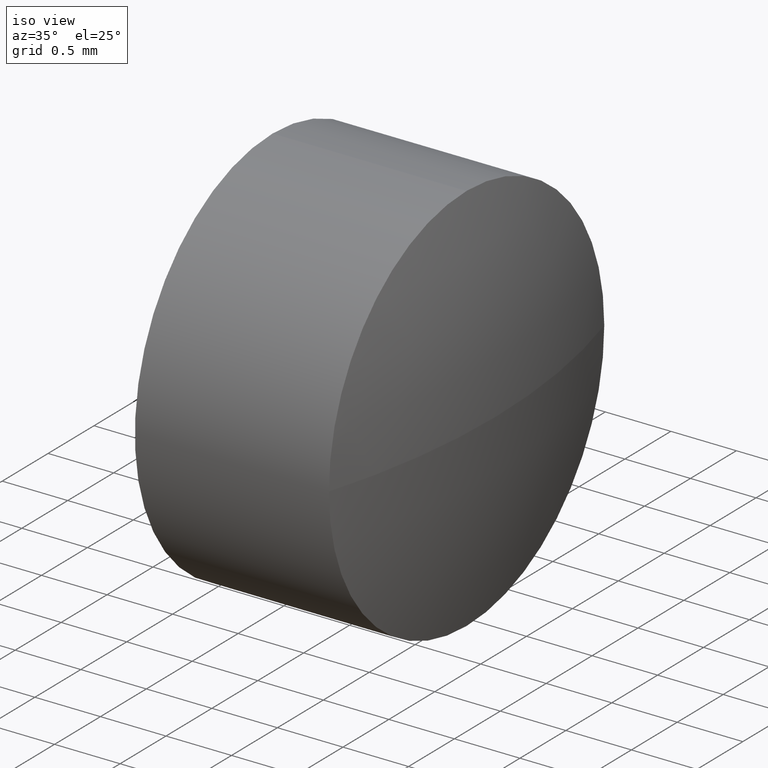
[diagram: clean part render]
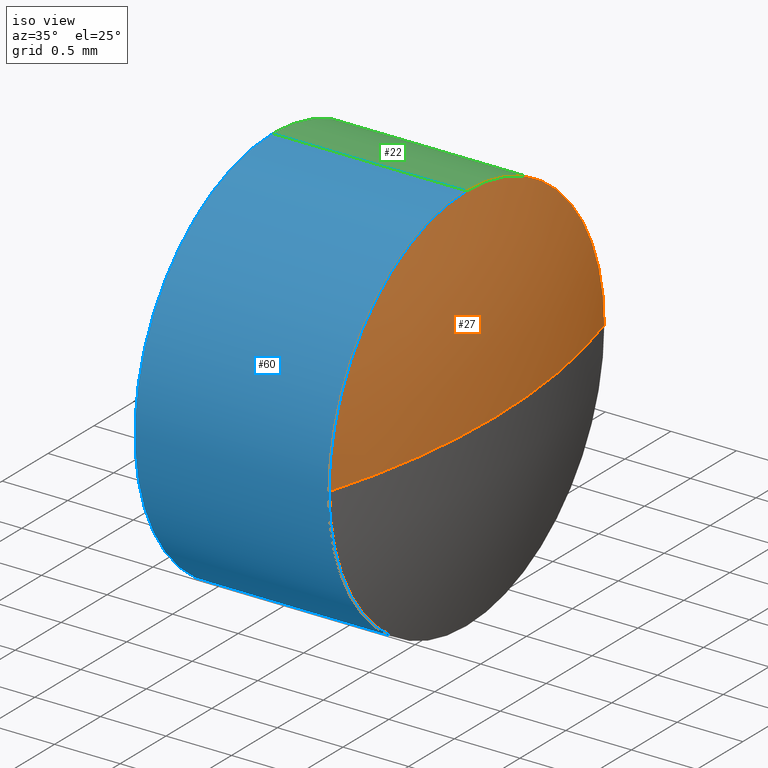
[diagram: same view with three faces highlighted in distinct colors, each labeled with its STEP entity id]
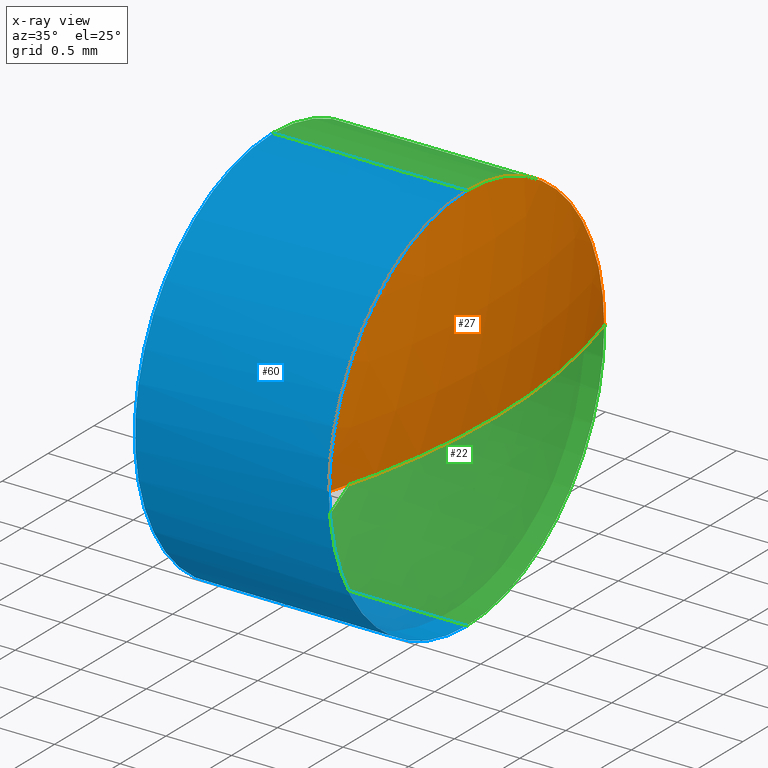
[diagram: x-ray of the same camera — body ghosted, the three highlighted faces saturated]
A machine part, iso view with three faces highlighted in distinct colors.
The next image is the same camera in x-ray (body ghosted, the three faces saturated) — at least one of them is partly hidden behind the body in this view.
Their STEP definitions:

[orange] entity #27 — the highlighted spherical surface has radius 5.2236 mm.
#5 = CARTESIAN_POINT ( 'NONE',  ( 630.1866953188922500, 143.7893486755916400, 0.0000000000000000000 ) ) ;
#17 = CIRCLE ( 'NONE', #111, 5.223636363636319200 ) ;
#27 = ADVANCED_FACE ( 'NONE', ( #47 ), #161, .T. ) ;
#28 = EDGE_CURVE ( 'NONE', #40, #77, #17, .T. ) ;
#35 = DIRECTION ( 'NONE',  ( -0.0000000000000000000, 0.0000000000000000000, -1.000000000000000000 ) ) ;
#40 = VERTEX_POINT ( 'NONE', #48 ) ;
#43 = CARTESIAN_POINT ( 'NONE',  ( 635.1903316825286100, 145.2893486755917000, 0.0000000000000000000 ) ) ;
#46 = ORIENTED_EDGE ( 'NONE', *, *, #98, .F. ) ;
#47 = FACE_OUTER_BOUND ( 'NONE', #163, .T. ) ;
#48 = CARTESIAN_POINT ( 'NONE',  ( 635.4103316825286400, 143.7893486755916400, 0.0000000000000000000 ) ) ;
#49 = DIRECTION ( 'NONE',  ( -1.000000000000000000, -0.0000000000000000000, -0.0000000000000000000 ) ) ;
#52 = AXIS2_PLACEMENT_3D ( 'NONE', #137, #49, #169 ) ;
#62 = DIRECTION ( 'NONE',  ( -0.0000000000000000000, 0.0000000000000000000, 1.000000000000000000 ) ) ;
#64 = CIRCLE ( 'NONE', #118, 5.223636363636346800 ) ;
#68 = VERTEX_POINT ( 'NONE', #166 ) ;
#70 = CIRCLE ( 'NONE', #52, 1.500000000000001300 ) ;
#77 = VERTEX_POINT ( 'NONE', #43 ) ;
#78 = DIRECTION ( 'NONE',  ( 0.0000000000000000000, 1.000000000000000000, 0.0000000000000000000 ) ) ;
#80 = AXIS2_PLACEMENT_3D ( 'NONE', #123, #35, #78 ) ;
#81 = DIRECTION ( 'NONE',  ( 0.0000000000000000000, 0.0000000000000000000, 1.000000000000000000 ) ) ;
#83 = ORIENTED_EDGE ( 'NONE', *, *, #136, .F. ) ;
#84 = DIRECTION ( 'NONE',  ( 0.0000000000000000000, 1.000000000000000000, 1.224646799147349800E-016 ) ) ;
#96 = DIRECTION ( 'NONE',  ( 0.0000000000000000000, 1.224646799147353200E-016, -1.000000000000000000 ) ) ;
#98 = EDGE_CURVE ( 'NONE', #40, #147, #64, .T. ) ;
#103 = EDGE_CURVE ( 'NONE', #68, #77, #139, .T. ) ;
#111 = AXIS2_PLACEMENT_3D ( 'NONE', #5, #62, #176 ) ;
#118 = AXIS2_PLACEMENT_3D ( 'NONE', #181, #96, #84 ) ;
#123 = CARTESIAN_POINT ( 'NONE',  ( 630.1866953188922500, 143.7893486755916400, 0.0000000000000000000 ) ) ;
#126 = CARTESIAN_POINT ( 'NONE',  ( 635.1903316825286100, 142.2893486755916700, -1.836970198720990200E-016 ) ) ;
#136 = EDGE_CURVE ( 'NONE', #147, #68, #70, .T. ) ;
#137 = CARTESIAN_POINT ( 'NONE',  ( 635.1903316825286100, 143.7893486755917300, 0.0000000000000000000 ) ) ;
#139 = CIRCLE ( 'NONE', #145, 1.500000000000001300 ) ;
#145 = AXIS2_PLACEMENT_3D ( 'NONE', #155, #151, #81 ) ;
#147 = VERTEX_POINT ( 'NONE', #126 ) ;
#151 = DIRECTION ( 'NONE',  ( -1.000000000000000000, -0.0000000000000000000, -0.0000000000000000000 ) ) ;
#155 = CARTESIAN_POINT ( 'NONE',  ( 635.1903316825286100, 143.7893486755917300, 0.0000000000000000000 ) ) ;
#156 = ORIENTED_EDGE ( 'NONE', *, *, #28, .T. ) ;
#161 = SPHERICAL_SURFACE ( 'NONE', #80, 5.223636363636333400 ) ;
#163 = EDGE_LOOP ( 'NONE', ( #46, #156, #184, #83 ) ) ;
#166 = CARTESIAN_POINT ( 'NONE',  ( 635.1903316825286100, 143.7893486755917300, 1.500000000000001300 ) ) ;
#169 = DIRECTION ( 'NONE',  ( 0.0000000000000000000, 0.0000000000000000000, 1.000000000000000000 ) ) ;
#176 = DIRECTION ( 'NONE',  ( 1.000000000000000000, 0.0000000000000000000, 0.0000000000000000000 ) ) ;
#181 = CARTESIAN_POINT ( 'NONE',  ( 630.1866953188922500, 143.7893486755916400, 0.0000000000000000000 ) ) ;
#184 = ORIENTED_EDGE ( 'NONE', *, *, #103, .F. ) ;

[blue] entity #60 — the highlighted cylindrical surface (partial cylindrical patch) has radius 1.5 mm, axis along (-1, -0, -0).
#1 = ORIENTED_EDGE ( 'NONE', *, *, #13, .F. ) ;
#2 = FACE_OUTER_BOUND ( 'NONE', #112, .T. ) ;
#4 = DIRECTION ( 'NONE',  ( 0.0000000000000000000, 0.0000000000000000000, 1.000000000000000000 ) ) ;
#10 = ORIENTED_EDGE ( 'NONE', *, *, #136, .T. ) ;
#11 = CARTESIAN_POINT ( 'NONE',  ( 635.1903316825286100, 143.7893486755917300, -1.500000000000001300 ) ) ;
#12 = LINE ( 'NONE', #41, #122 ) ;
#13 = EDGE_CURVE ( 'NONE', #114, #170, #117, .T. ) ;
#19 = EDGE_CURVE ( 'NONE', #68, #39, #12, .T. ) ;
#23 = DIRECTION ( 'NONE',  ( -1.000000000000000000, -0.0000000000000000000, -0.0000000000000000000 ) ) ;
#25 = DIRECTION ( 'NONE',  ( 0.0000000000000000000, 0.0000000000000000000, 1.000000000000000000 ) ) ;
#39 = VERTEX_POINT ( 'NONE', #135 ) ;
#41 = CARTESIAN_POINT ( 'NONE',  ( 633.3066025333835100, 143.7893486755917300, 1.500000000000001300 ) ) ;
#49 = DIRECTION ( 'NONE',  ( -1.000000000000000000, -0.0000000000000000000, -0.0000000000000000000 ) ) ;
#52 = AXIS2_PLACEMENT_3D ( 'NONE', #137, #49, #169 ) ;
#53 = CIRCLE ( 'NONE', #109, 1.500000000000001300 ) ;
#54 = AXIS2_PLACEMENT_3D ( 'NONE', #79, #105, #148 ) ;
#60 = ADVANCED_FACE ( 'NONE', ( #2 ), #61, .T. ) ;
#61 = CYLINDRICAL_SURFACE ( 'NONE', #54, 1.500000000000001300 ) ;
#66 = CARTESIAN_POINT ( 'NONE',  ( 633.7103316825285900, 143.7893486755917300, -1.500000000000001300 ) ) ;
#68 = VERTEX_POINT ( 'NONE', #166 ) ;
#70 = CIRCLE ( 'NONE', #52, 1.500000000000001300 ) ;
#79 = CARTESIAN_POINT ( 'NONE',  ( 633.3066025333835100, 143.7893486755917300, 0.0000000000000000000 ) ) ;
#86 = ORIENTED_EDGE ( 'NONE', *, *, #132, .T. ) ;
#87 = DIRECTION ( 'NONE',  ( -1.000000000000000000, -0.0000000000000000000, -0.0000000000000000000 ) ) ;
#90 = VECTOR ( 'NONE', #185, 1000.000000000000000 ) ;
#95 = EDGE_CURVE ( 'NONE', #170, #39, #53, .T. ) ;
#105 = DIRECTION ( 'NONE',  ( -1.000000000000000000, -0.0000000000000000000, -0.0000000000000000000 ) ) ;
#107 = CARTESIAN_POINT ( 'NONE',  ( 635.1903316825286100, 143.7893486755917300, 0.0000000000000000000 ) ) ;
#109 = AXIS2_PLACEMENT_3D ( 'NONE', #177, #23, #4 ) ;
#112 = EDGE_LOOP ( 'NONE', ( #1, #86, #10, #154, #158 ) ) ;
#113 = CARTESIAN_POINT ( 'NONE',  ( 633.3066025333835100, 143.7893486755917300, -1.500000000000001300 ) ) ;
#114 = VERTEX_POINT ( 'NONE', #11 ) ;
#117 = LINE ( 'NONE', #113, #90 ) ;
#121 = AXIS2_PLACEMENT_3D ( 'NONE', #107, #124, #25 ) ;
#122 = VECTOR ( 'NONE', #87, 1000.000000000000000 ) ;
#124 = DIRECTION ( 'NONE',  ( -1.000000000000000000, -0.0000000000000000000, -0.0000000000000000000 ) ) ;
#126 = CARTESIAN_POINT ( 'NONE',  ( 635.1903316825286100, 142.2893486755916700, -1.836970198720990200E-016 ) ) ;
#132 = EDGE_CURVE ( 'NONE', #114, #147, #141, .T. ) ;
#135 = CARTESIAN_POINT ( 'NONE',  ( 633.7103316825285900, 143.7893486755917300, 1.500000000000001300 ) ) ;
#136 = EDGE_CURVE ( 'NONE', #147, #68, #70, .T. ) ;
#137 = CARTESIAN_POINT ( 'NONE',  ( 635.1903316825286100, 143.7893486755917300, 0.0000000000000000000 ) ) ;
#141 = CIRCLE ( 'NONE', #121, 1.500000000000001300 ) ;
#147 = VERTEX_POINT ( 'NONE', #126 ) ;
#148 = DIRECTION ( 'NONE',  ( 0.0000000000000000000, 0.0000000000000000000, 1.000000000000000000 ) ) ;
#154 = ORIENTED_EDGE ( 'NONE', *, *, #19, .T. ) ;
#158 = ORIENTED_EDGE ( 'NONE', *, *, #95, .F. ) ;
#166 = CARTESIAN_POINT ( 'NONE',  ( 635.1903316825286100, 143.7893486755917300, 1.500000000000001300 ) ) ;
#169 = DIRECTION ( 'NONE',  ( 0.0000000000000000000, 0.0000000000000000000, 1.000000000000000000 ) ) ;
#170 = VERTEX_POINT ( 'NONE', #66 ) ;
#177 = CARTESIAN_POINT ( 'NONE',  ( 633.7103316825285900, 143.7893486755917300, 0.0000000000000000000 ) ) ;
#185 = DIRECTION ( 'NONE',  ( -1.000000000000000000, -0.0000000000000000000, -0.0000000000000000000 ) ) ;

[green] entity #22 — the highlighted cylindrical surface (partial cylindrical patch) has radius 1.5 mm, axis along (-1, -0, -0).
#11 = CARTESIAN_POINT ( 'NONE',  ( 635.1903316825286100, 143.7893486755917300, -1.500000000000001300 ) ) ;
#12 = LINE ( 'NONE', #41, #122 ) ;
#13 = EDGE_CURVE ( 'NONE', #114, #170, #117, .T. ) ;
#19 = EDGE_CURVE ( 'NONE', #68, #39, #12, .T. ) ;
#20 = DIRECTION ( 'NONE',  ( 0.0000000000000000000, 0.0000000000000000000, 1.000000000000000000 ) ) ;
#22 = ADVANCED_FACE ( 'NONE', ( #44 ), #85, .T. ) ;
#24 = AXIS2_PLACEMENT_3D ( 'NONE', #31, #115, #74 ) ;
#31 = CARTESIAN_POINT ( 'NONE',  ( 633.7103316825285900, 143.7893486755917300, 0.0000000000000000000 ) ) ;
#39 = VERTEX_POINT ( 'NONE', #135 ) ;
#41 = CARTESIAN_POINT ( 'NONE',  ( 633.3066025333835100, 143.7893486755917300, 1.500000000000001300 ) ) ;
#43 = CARTESIAN_POINT ( 'NONE',  ( 635.1903316825286100, 145.2893486755917000, 0.0000000000000000000 ) ) ;
#44 = FACE_OUTER_BOUND ( 'NONE', #125, .T. ) ;
#66 = CARTESIAN_POINT ( 'NONE',  ( 633.7103316825285900, 143.7893486755917300, -1.500000000000001300 ) ) ;
#67 = CIRCLE ( 'NONE', #24, 1.500000000000001300 ) ;
#68 = VERTEX_POINT ( 'NONE', #166 ) ;
#69 = EDGE_CURVE ( 'NONE', #39, #170, #67, .T. ) ;
#73 = ORIENTED_EDGE ( 'NONE', *, *, #19, .F. ) ;
#74 = DIRECTION ( 'NONE',  ( 0.0000000000000000000, 0.0000000000000000000, 1.000000000000000000 ) ) ;
#77 = VERTEX_POINT ( 'NONE', #43 ) ;
#81 = DIRECTION ( 'NONE',  ( 0.0000000000000000000, 0.0000000000000000000, 1.000000000000000000 ) ) ;
#82 = DIRECTION ( 'NONE',  ( 0.0000000000000000000, 0.0000000000000000000, 1.000000000000000000 ) ) ;
#85 = CYLINDRICAL_SURFACE ( 'NONE', #174, 1.500000000000001300 ) ;
#87 = DIRECTION ( 'NONE',  ( -1.000000000000000000, -0.0000000000000000000, -0.0000000000000000000 ) ) ;
#90 = VECTOR ( 'NONE', #185, 1000.000000000000000 ) ;
#101 = DIRECTION ( 'NONE',  ( -1.000000000000000000, -0.0000000000000000000, -0.0000000000000000000 ) ) ;
#103 = EDGE_CURVE ( 'NONE', #68, #77, #139, .T. ) ;
#104 = EDGE_CURVE ( 'NONE', #77, #114, #133, .T. ) ;
#113 = CARTESIAN_POINT ( 'NONE',  ( 633.3066025333835100, 143.7893486755917300, -1.500000000000001300 ) ) ;
#114 = VERTEX_POINT ( 'NONE', #11 ) ;
#115 = DIRECTION ( 'NONE',  ( -1.000000000000000000, -0.0000000000000000000, -0.0000000000000000000 ) ) ;
#117 = LINE ( 'NONE', #113, #90 ) ;
#120 = ORIENTED_EDGE ( 'NONE', *, *, #103, .T. ) ;
#122 = VECTOR ( 'NONE', #87, 1000.000000000000000 ) ;
#125 = EDGE_LOOP ( 'NONE', ( #168, #127, #131, #73, #120 ) ) ;
#127 = ORIENTED_EDGE ( 'NONE', *, *, #13, .T. ) ;
#129 = CARTESIAN_POINT ( 'NONE',  ( 633.3066025333835100, 143.7893486755917300, 0.0000000000000000000 ) ) ;
#131 = ORIENTED_EDGE ( 'NONE', *, *, #69, .F. ) ;
#133 = CIRCLE ( 'NONE', #150, 1.500000000000001300 ) ;
#135 = CARTESIAN_POINT ( 'NONE',  ( 633.7103316825285900, 143.7893486755917300, 1.500000000000001300 ) ) ;
#139 = CIRCLE ( 'NONE', #145, 1.500000000000001300 ) ;
#145 = AXIS2_PLACEMENT_3D ( 'NONE', #155, #151, #81 ) ;
#150 = AXIS2_PLACEMENT_3D ( 'NONE', #180, #179, #82 ) ;
#151 = DIRECTION ( 'NONE',  ( -1.000000000000000000, -0.0000000000000000000, -0.0000000000000000000 ) ) ;
#155 = CARTESIAN_POINT ( 'NONE',  ( 635.1903316825286100, 143.7893486755917300, 0.0000000000000000000 ) ) ;
#166 = CARTESIAN_POINT ( 'NONE',  ( 635.1903316825286100, 143.7893486755917300, 1.500000000000001300 ) ) ;
#168 = ORIENTED_EDGE ( 'NONE', *, *, #104, .T. ) ;
#170 = VERTEX_POINT ( 'NONE', #66 ) ;
#174 = AXIS2_PLACEMENT_3D ( 'NONE', #129, #101, #20 ) ;
#179 = DIRECTION ( 'NONE',  ( -1.000000000000000000, -0.0000000000000000000, -0.0000000000000000000 ) ) ;
#180 = CARTESIAN_POINT ( 'NONE',  ( 635.1903316825286100, 143.7893486755917300, 0.0000000000000000000 ) ) ;
#185 = DIRECTION ( 'NONE',  ( -1.000000000000000000, -0.0000000000000000000, -0.0000000000000000000 ) ) ;